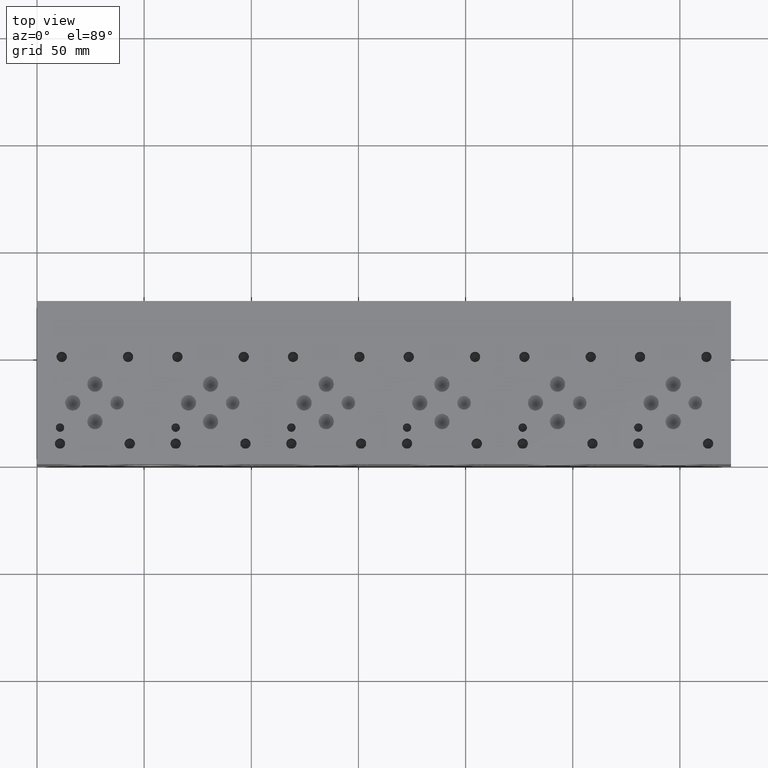
[diagram: clean part render]
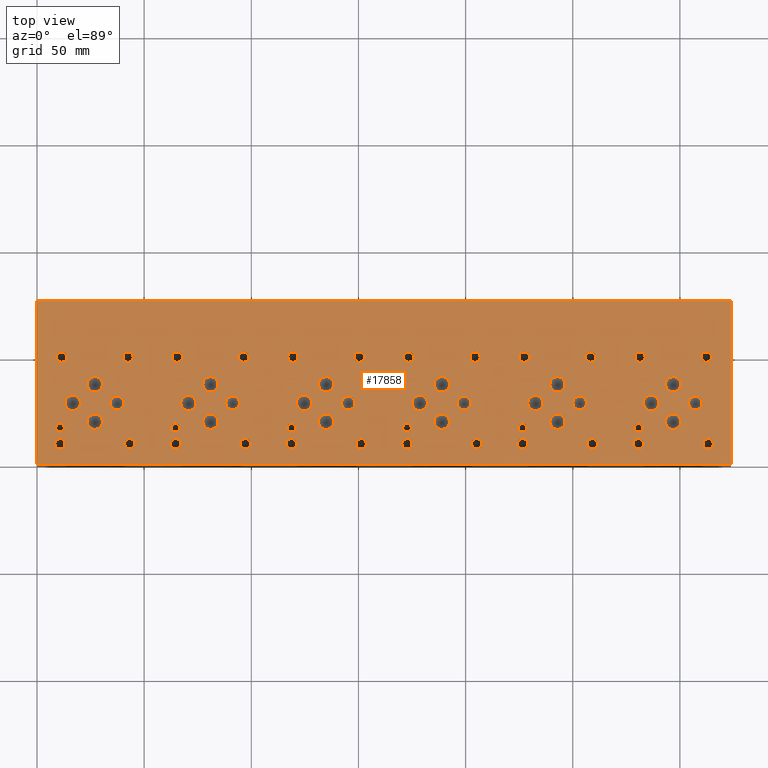
[diagram: same view with one face highlighted and labeled with its STEP entity id]
A machine part, top view. The second image highlights one B-rep face of the part: STEP entity #17858.
In plain terms, the highlighted planar face has unit normal (0, 0, 1).
Its self-contained STEP definition (entity closure, byte-faithful):
#515=CIRCLE('',#18702,1.9812);
#517=CIRCLE('',#18706,1.9812);
#519=CIRCLE('',#18710,1.9812);
#521=CIRCLE('',#18714,1.9812);
#523=CIRCLE('',#18718,1.9812);
#525=CIRCLE('',#18722,3.175);
#527=CIRCLE('',#18726,3.175);
#529=CIRCLE('',#18730,3.175);
#531=CIRCLE('',#18734,3.175);
#533=CIRCLE('',#18738,3.175);
#535=CIRCLE('',#18742,3.175);
#537=CIRCLE('',#18746,3.5687);
#539=CIRCLE('',#18750,3.5687);
#541=CIRCLE('',#18754,3.5687);
#543=CIRCLE('',#18758,3.5687);
#545=CIRCLE('',#18762,3.5687);
#547=CIRCLE('',#18766,3.5687);
#549=CIRCLE('',#18770,3.5687);
#551=CIRCLE('',#18774,3.5687);
#553=CIRCLE('',#18778,3.5687);
#555=CIRCLE('',#18782,3.5687);
#557=CIRCLE('',#18786,3.5687);
#559=CIRCLE('',#18790,3.5687);
#561=CIRCLE('',#18794,3.5687);
#563=CIRCLE('',#18798,3.5687);
#565=CIRCLE('',#18802,3.5687);
#567=CIRCLE('',#18806,3.5687);
#569=CIRCLE('',#18810,3.5687);
#571=CIRCLE('',#18814,3.5687);
#573=CIRCLE('',#18818,1.9812);
#577=CIRCLE('',#18825,2.413);
#581=CIRCLE('',#18833,2.413);
#585=CIRCLE('',#18841,2.413);
#589=CIRCLE('',#18849,2.413);
#593=CIRCLE('',#18857,2.413);
#597=CIRCLE('',#18865,2.413);
#601=CIRCLE('',#18873,2.413);
#605=CIRCLE('',#18881,2.413);
#609=CIRCLE('',#18889,2.413);
#613=CIRCLE('',#18897,2.413);
#617=CIRCLE('',#18905,2.413);
#621=CIRCLE('',#18913,2.413);
#625=CIRCLE('',#18921,2.413);
#629=CIRCLE('',#18929,2.413);
#633=CIRCLE('',#18937,2.413);
#637=CIRCLE('',#18945,2.413);
#641=CIRCLE('',#18953,2.413);
#645=CIRCLE('',#18961,2.413);
#649=CIRCLE('',#18969,2.413);
#653=CIRCLE('',#18977,2.413);
#657=CIRCLE('',#18985,2.413);
#661=CIRCLE('',#18993,2.413);
#665=CIRCLE('',#19001,2.413);
#669=CIRCLE('',#19009,2.413);
#818=FACE_BOUND('',#3519,.T.);
#819=FACE_BOUND('',#3520,.T.);
#820=FACE_BOUND('',#3521,.T.);
#821=FACE_BOUND('',#3522,.T.);
#822=FACE_BOUND('',#3523,.T.);
#823=FACE_BOUND('',#3524,.T.);
#824=FACE_BOUND('',#3525,.T.);
#825=FACE_BOUND('',#3526,.T.);
#826=FACE_BOUND('',#3527,.T.);
#827=FACE_BOUND('',#3528,.T.);
#828=FACE_BOUND('',#3529,.T.);
#829=FACE_BOUND('',#3530,.T.);
#830=FACE_BOUND('',#3531,.T.);
#831=FACE_BOUND('',#3532,.T.);
#832=FACE_BOUND('',#3533,.T.);
#833=FACE_BOUND('',#3534,.T.);
#834=FACE_BOUND('',#3535,.T.);
#835=FACE_BOUND('',#3536,.T.);
#836=FACE_BOUND('',#3537,.T.);
#837=FACE_BOUND('',#3538,.T.);
#838=FACE_BOUND('',#3539,.T.);
#839=FACE_BOUND('',#3540,.T.);
#840=FACE_BOUND('',#3541,.T.);
#841=FACE_BOUND('',#3542,.T.);
#842=FACE_BOUND('',#3543,.T.);
#843=FACE_BOUND('',#3544,.T.);
#844=FACE_BOUND('',#3545,.T.);
#845=FACE_BOUND('',#3546,.T.);
#846=FACE_BOUND('',#3547,.T.);
#847=FACE_BOUND('',#3548,.T.);
#848=FACE_BOUND('',#3549,.T.);
#849=FACE_BOUND('',#3550,.T.);
#850=FACE_BOUND('',#3551,.T.);
#851=FACE_BOUND('',#3552,.T.);
#852=FACE_BOUND('',#3553,.T.);
#853=FACE_BOUND('',#3554,.T.);
#854=FACE_BOUND('',#3555,.T.);
#855=FACE_BOUND('',#3556,.T.);
#856=FACE_BOUND('',#3557,.T.);
#857=FACE_BOUND('',#3558,.T.);
#858=FACE_BOUND('',#3559,.T.);
#859=FACE_BOUND('',#3560,.T.);
#860=FACE_BOUND('',#3561,.T.);
#861=FACE_BOUND('',#3562,.T.);
#862=FACE_BOUND('',#3563,.T.);
#863=FACE_BOUND('',#3564,.T.);
#864=FACE_BOUND('',#3565,.T.);
#865=FACE_BOUND('',#3566,.T.);
#866=FACE_BOUND('',#3567,.T.);
#867=FACE_BOUND('',#3568,.T.);
#868=FACE_BOUND('',#3569,.T.);
#869=FACE_BOUND('',#3570,.T.);
#870=FACE_BOUND('',#3571,.T.);
#871=FACE_BOUND('',#3572,.T.);
#1354=PLANE('',#19015);
#2362=FACE_OUTER_BOUND('',#3518,.T.);
#3518=EDGE_LOOP('',(#15948,#15949,#15950,#15951));
#3519=EDGE_LOOP('',(#15952));
#3520=EDGE_LOOP('',(#15953));
#3521=EDGE_LOOP('',(#15954));
#3522=EDGE_LOOP('',(#15955));
#3523=EDGE_LOOP('',(#15956));
#3524=EDGE_LOOP('',(#15957));
#3525=EDGE_LOOP('',(#15958));
#3526=EDGE_LOOP('',(#15959));
#3527=EDGE_LOOP('',(#15960));
#3528=EDGE_LOOP('',(#15961));
#3529=EDGE_LOOP('',(#15962));
#3530=EDGE_LOOP('',(#15963));
#3531=EDGE_LOOP('',(#15964));
#3532=EDGE_LOOP('',(#15965));
#3533=EDGE_LOOP('',(#15966));
#3534=EDGE_LOOP('',(#15967));
#3535=EDGE_LOOP('',(#15968));
#3536=EDGE_LOOP('',(#15969));
#3537=EDGE_LOOP('',(#15970));
#3538=EDGE_LOOP('',(#15971));
#3539=EDGE_LOOP('',(#15972));
#3540=EDGE_LOOP('',(#15973));
#3541=EDGE_LOOP('',(#15974));
#3542=EDGE_LOOP('',(#15975));
#3543=EDGE_LOOP('',(#15976));
#3544=EDGE_LOOP('',(#15977));
#3545=EDGE_LOOP('',(#15978));
#3546=EDGE_LOOP('',(#15979));
#3547=EDGE_LOOP('',(#15980));
#3548=EDGE_LOOP('',(#15981));
#3549=EDGE_LOOP('',(#15982));
#3550=EDGE_LOOP('',(#15983));
#3551=EDGE_LOOP('',(#15984));
#3552=EDGE_LOOP('',(#15985));
#3553=EDGE_LOOP('',(#15986));
#3554=EDGE_LOOP('',(#15987));
#3555=EDGE_LOOP('',(#15988));
#3556=EDGE_LOOP('',(#15989));
#3557=EDGE_LOOP('',(#15990));
#3558=EDGE_LOOP('',(#15991));
#3559=EDGE_LOOP('',(#15992));
#3560=EDGE_LOOP('',(#15993));
#3561=EDGE_LOOP('',(#15994));
#3562=EDGE_LOOP('',(#15995));
#3563=EDGE_LOOP('',(#15996));
#3564=EDGE_LOOP('',(#15997));
#3565=EDGE_LOOP('',(#15998));
#3566=EDGE_LOOP('',(#15999));
#3567=EDGE_LOOP('',(#16000));
#3568=EDGE_LOOP('',(#16001));
#3569=EDGE_LOOP('',(#16002));
#3570=EDGE_LOOP('',(#16003));
#3571=EDGE_LOOP('',(#16004));
#3572=EDGE_LOOP('',(#16005));
#3620=LINE('',#23223,#5209);
#4780=LINE('',#29111,#6369);
#4838=LINE('',#29374,#6427);
#5162=LINE('',#30843,#6751);
#5209=VECTOR('',#19089,10.);
#6369=VECTOR('',#21027,10.);
#6427=VECTOR('',#21131,10.);
#6751=VECTOR('',#22879,10.);
#7256=VERTEX_POINT('',#23220);
#7257=VERTEX_POINT('',#23222);
#8316=VERTEX_POINT('',#29109);
#8370=VERTEX_POINT('',#29373);
#8596=VERTEX_POINT('',#30192);
#8599=VERTEX_POINT('',#30201);
#8602=VERTEX_POINT('',#30210);
#8605=VERTEX_POINT('',#30219);
#8608=VERTEX_POINT('',#30228);
#8611=VERTEX_POINT('',#30237);
#8614=VERTEX_POINT('',#30246);
#8617=VERTEX_POINT('',#30255);
#8620=VERTEX_POINT('',#30264);
#8623=VERTEX_POINT('',#30273);
#8626=VERTEX_POINT('',#30282);
#8629=VERTEX_POINT('',#30291);
#8632=VERTEX_POINT('',#30300);
#8635=VERTEX_POINT('',#30309);
#8638=VERTEX_POINT('',#30318);
#8641=VERTEX_POINT('',#30327);
#8644=VERTEX_POINT('',#30336);
#8647=VERTEX_POINT('',#30345);
#8650=VERTEX_POINT('',#30354);
#8653=VERTEX_POINT('',#30363);
#8656=VERTEX_POINT('',#30372);
#8659=VERTEX_POINT('',#30381);
#8662=VERTEX_POINT('',#30390);
#8665=VERTEX_POINT('',#30399);
#8668=VERTEX_POINT('',#30408);
#8671=VERTEX_POINT('',#30417);
#8674=VERTEX_POINT('',#30426);
#8677=VERTEX_POINT('',#30435);
#8680=VERTEX_POINT('',#30444);
#8683=VERTEX_POINT('',#30453);
#8688=VERTEX_POINT('',#30467);
#8693=VERTEX_POINT('',#30483);
#8698=VERTEX_POINT('',#30499);
#8703=VERTEX_POINT('',#30515);
#8708=VERTEX_POINT('',#30531);
#8713=VERTEX_POINT('',#30547);
#8718=VERTEX_POINT('',#30563);
#8723=VERTEX_POINT('',#30579);
#8728=VERTEX_POINT('',#30595);
#8733=VERTEX_POINT('',#30611);
#8738=VERTEX_POINT('',#30627);
#8743=VERTEX_POINT('',#30643);
#8748=VERTEX_POINT('',#30659);
#8753=VERTEX_POINT('',#30675);
#8758=VERTEX_POINT('',#30691);
#8763=VERTEX_POINT('',#30707);
#8768=VERTEX_POINT('',#30723);
#8773=VERTEX_POINT('',#30739);
#8778=VERTEX_POINT('',#30755);
#8783=VERTEX_POINT('',#30771);
#8788=VERTEX_POINT('',#30787);
#8793=VERTEX_POINT('',#30803);
#8798=VERTEX_POINT('',#30819);
#8803=VERTEX_POINT('',#30835);
#8878=EDGE_CURVE('',#7257,#7256,#3620,.T.);
#10461=EDGE_CURVE('',#7256,#8316,#4780,.T.);
#10539=EDGE_CURVE('',#8370,#7257,#4838,.T.);
#10918=EDGE_CURVE('',#8596,#8596,#515,.T.);
#10922=EDGE_CURVE('',#8599,#8599,#517,.T.);
#10926=EDGE_CURVE('',#8602,#8602,#519,.T.);
#10930=EDGE_CURVE('',#8605,#8605,#521,.T.);
#10934=EDGE_CURVE('',#8608,#8608,#523,.T.);
#10938=EDGE_CURVE('',#8611,#8611,#525,.T.);
#10942=EDGE_CURVE('',#8614,#8614,#527,.T.);
#10946=EDGE_CURVE('',#8617,#8617,#529,.T.);
#10950=EDGE_CURVE('',#8620,#8620,#531,.T.);
#10954=EDGE_CURVE('',#8623,#8623,#533,.T.);
#10958=EDGE_CURVE('',#8626,#8626,#535,.T.);
#10962=EDGE_CURVE('',#8629,#8629,#537,.T.);
#10966=EDGE_CURVE('',#8632,#8632,#539,.T.);
#10970=EDGE_CURVE('',#8635,#8635,#541,.T.);
#10974=EDGE_CURVE('',#8638,#8638,#543,.T.);
#10978=EDGE_CURVE('',#8641,#8641,#545,.T.);
#10982=EDGE_CURVE('',#8644,#8644,#547,.T.);
#10986=EDGE_CURVE('',#8647,#8647,#549,.T.);
#10990=EDGE_CURVE('',#8650,#8650,#551,.T.);
#10994=EDGE_CURVE('',#8653,#8653,#553,.T.);
#10998=EDGE_CURVE('',#8656,#8656,#555,.T.);
#11002=EDGE_CURVE('',#8659,#8659,#557,.T.);
#11006=EDGE_CURVE('',#8662,#8662,#559,.T.);
#11010=EDGE_CURVE('',#8665,#8665,#561,.T.);
#11014=EDGE_CURVE('',#8668,#8668,#563,.T.);
#11018=EDGE_CURVE('',#8671,#8671,#565,.T.);
#11022=EDGE_CURVE('',#8674,#8674,#567,.T.);
#11026=EDGE_CURVE('',#8677,#8677,#569,.T.);
#11030=EDGE_CURVE('',#8680,#8680,#571,.T.);
#11034=EDGE_CURVE('',#8683,#8683,#573,.T.);
#11040=EDGE_CURVE('',#8688,#8688,#577,.T.);
#11047=EDGE_CURVE('',#8693,#8693,#581,.T.);
#11054=EDGE_CURVE('',#8698,#8698,#585,.T.);
#11061=EDGE_CURVE('',#8703,#8703,#589,.T.);
#11068=EDGE_CURVE('',#8708,#8708,#593,.T.);
#11075=EDGE_CURVE('',#8713,#8713,#597,.T.);
#11082=EDGE_CURVE('',#8718,#8718,#601,.T.);
#11089=EDGE_CURVE('',#8723,#8723,#605,.T.);
#11096=EDGE_CURVE('',#8728,#8728,#609,.T.);
#11103=EDGE_CURVE('',#8733,#8733,#613,.T.);
#11110=EDGE_CURVE('',#8738,#8738,#617,.T.);
#11117=EDGE_CURVE('',#8743,#8743,#621,.T.);
#11124=EDGE_CURVE('',#8748,#8748,#625,.T.);
#11131=EDGE_CURVE('',#8753,#8753,#629,.T.);
#11138=EDGE_CURVE('',#8758,#8758,#633,.T.);
#11145=EDGE_CURVE('',#8763,#8763,#637,.T.);
#11152=EDGE_CURVE('',#8768,#8768,#641,.T.);
#11159=EDGE_CURVE('',#8773,#8773,#645,.T.);
#11166=EDGE_CURVE('',#8778,#8778,#649,.T.);
#11173=EDGE_CURVE('',#8783,#8783,#653,.T.);
#11180=EDGE_CURVE('',#8788,#8788,#657,.T.);
#11187=EDGE_CURVE('',#8793,#8793,#661,.T.);
#11194=EDGE_CURVE('',#8798,#8798,#665,.T.);
#11201=EDGE_CURVE('',#8803,#8803,#669,.T.);
#11205=EDGE_CURVE('',#8316,#8370,#5162,.T.);
#15948=ORIENTED_EDGE('',*,*,#8878,.T.);
#15949=ORIENTED_EDGE('',*,*,#10461,.T.);
#15950=ORIENTED_EDGE('',*,*,#11205,.T.);
#15951=ORIENTED_EDGE('',*,*,#10539,.T.);
#15952=ORIENTED_EDGE('',*,*,#10918,.T.);
#15953=ORIENTED_EDGE('',*,*,#10922,.T.);
#15954=ORIENTED_EDGE('',*,*,#10926,.T.);
#15955=ORIENTED_EDGE('',*,*,#10930,.T.);
#15956=ORIENTED_EDGE('',*,*,#10934,.T.);
#15957=ORIENTED_EDGE('',*,*,#10938,.T.);
#15958=ORIENTED_EDGE('',*,*,#10942,.T.);
#15959=ORIENTED_EDGE('',*,*,#10946,.T.);
#15960=ORIENTED_EDGE('',*,*,#10950,.T.);
#15961=ORIENTED_EDGE('',*,*,#10954,.T.);
#15962=ORIENTED_EDGE('',*,*,#10958,.T.);
#15963=ORIENTED_EDGE('',*,*,#10962,.T.);
#15964=ORIENTED_EDGE('',*,*,#10966,.T.);
#15965=ORIENTED_EDGE('',*,*,#10970,.T.);
#15966=ORIENTED_EDGE('',*,*,#10974,.T.);
#15967=ORIENTED_EDGE('',*,*,#10978,.T.);
#15968=ORIENTED_EDGE('',*,*,#10982,.T.);
#15969=ORIENTED_EDGE('',*,*,#10986,.T.);
#15970=ORIENTED_EDGE('',*,*,#10990,.T.);
#15971=ORIENTED_EDGE('',*,*,#10994,.T.);
#15972=ORIENTED_EDGE('',*,*,#10998,.T.);
#15973=ORIENTED_EDGE('',*,*,#11002,.T.);
#15974=ORIENTED_EDGE('',*,*,#11006,.T.);
#15975=ORIENTED_EDGE('',*,*,#11010,.T.);
#15976=ORIENTED_EDGE('',*,*,#11014,.T.);
#15977=ORIENTED_EDGE('',*,*,#11018,.T.);
#15978=ORIENTED_EDGE('',*,*,#11022,.T.);
#15979=ORIENTED_EDGE('',*,*,#11026,.T.);
#15980=ORIENTED_EDGE('',*,*,#11030,.T.);
#15981=ORIENTED_EDGE('',*,*,#11034,.T.);
#15982=ORIENTED_EDGE('',*,*,#11040,.T.);
#15983=ORIENTED_EDGE('',*,*,#11047,.T.);
#15984=ORIENTED_EDGE('',*,*,#11054,.T.);
#15985=ORIENTED_EDGE('',*,*,#11061,.T.);
#15986=ORIENTED_EDGE('',*,*,#11068,.T.);
#15987=ORIENTED_EDGE('',*,*,#11075,.T.);
#15988=ORIENTED_EDGE('',*,*,#11082,.T.);
#15989=ORIENTED_EDGE('',*,*,#11089,.T.);
#15990=ORIENTED_EDGE('',*,*,#11096,.T.);
#15991=ORIENTED_EDGE('',*,*,#11103,.T.);
#15992=ORIENTED_EDGE('',*,*,#11110,.T.);
#15993=ORIENTED_EDGE('',*,*,#11117,.T.);
#15994=ORIENTED_EDGE('',*,*,#11124,.T.);
#15995=ORIENTED_EDGE('',*,*,#11131,.T.);
#15996=ORIENTED_EDGE('',*,*,#11138,.T.);
#15997=ORIENTED_EDGE('',*,*,#11145,.T.);
#15998=ORIENTED_EDGE('',*,*,#11152,.T.);
#15999=ORIENTED_EDGE('',*,*,#11159,.T.);
#16000=ORIENTED_EDGE('',*,*,#11166,.T.);
#16001=ORIENTED_EDGE('',*,*,#11173,.T.);
#16002=ORIENTED_EDGE('',*,*,#11180,.T.);
#16003=ORIENTED_EDGE('',*,*,#11187,.T.);
#16004=ORIENTED_EDGE('',*,*,#11194,.T.);
#16005=ORIENTED_EDGE('',*,*,#11201,.T.);
#17858=ADVANCED_FACE('',(#2362,#818,#819,#820,#821,#822,#823,#824,#825,
#826,#827,#828,#829,#830,#831,#832,#833,#834,#835,#836,#837,#838,#839,#840,
#841,#842,#843,#844,#845,#846,#847,#848,#849,#850,#851,#852,#853,#854,#855,
#856,#857,#858,#859,#860,#861,#862,#863,#864,#865,#866,#867,#868,#869,#870,
#871),#1354,.T.);
#18702=AXIS2_PLACEMENT_3D('',#30193,#22125,#22126);
#18706=AXIS2_PLACEMENT_3D('',#30202,#22135,#22136);
#18710=AXIS2_PLACEMENT_3D('',#30211,#22145,#22146);
#18714=AXIS2_PLACEMENT_3D('',#30220,#22155,#22156);
#18718=AXIS2_PLACEMENT_3D('',#30229,#22165,#22166);
#18722=AXIS2_PLACEMENT_3D('',#30238,#22175,#22176);
#18726=AXIS2_PLACEMENT_3D('',#30247,#22185,#22186);
#18730=AXIS2_PLACEMENT_3D('',#30256,#22195,#22196);
#18734=AXIS2_PLACEMENT_3D('',#30265,#22205,#22206);
#18738=AXIS2_PLACEMENT_3D('',#30274,#22215,#22216);
#18742=AXIS2_PLACEMENT_3D('',#30283,#22225,#22226);
#18746=AXIS2_PLACEMENT_3D('',#30292,#22235,#22236);
#18750=AXIS2_PLACEMENT_3D('',#30301,#22245,#22246);
#18754=AXIS2_PLACEMENT_3D('',#30310,#22255,#22256);
#18758=AXIS2_PLACEMENT_3D('',#30319,#22265,#22266);
#18762=AXIS2_PLACEMENT_3D('',#30328,#22275,#22276);
#18766=AXIS2_PLACEMENT_3D('',#30337,#22285,#22286);
#18770=AXIS2_PLACEMENT_3D('',#30346,#22295,#22296);
#18774=AXIS2_PLACEMENT_3D('',#30355,#22305,#22306);
#18778=AXIS2_PLACEMENT_3D('',#30364,#22315,#22316);
#18782=AXIS2_PLACEMENT_3D('',#30373,#22325,#22326);
#18786=AXIS2_PLACEMENT_3D('',#30382,#22335,#22336);
#18790=AXIS2_PLACEMENT_3D('',#30391,#22345,#22346);
#18794=AXIS2_PLACEMENT_3D('',#30400,#22355,#22356);
#18798=AXIS2_PLACEMENT_3D('',#30409,#22365,#22366);
#18802=AXIS2_PLACEMENT_3D('',#30418,#22375,#22376);
#18806=AXIS2_PLACEMENT_3D('',#30427,#22385,#22386);
#18810=AXIS2_PLACEMENT_3D('',#30436,#22395,#22396);
#18814=AXIS2_PLACEMENT_3D('',#30445,#22405,#22406);
#18818=AXIS2_PLACEMENT_3D('',#30454,#22415,#22416);
#18825=AXIS2_PLACEMENT_3D('',#30468,#22431,#22432);
#18833=AXIS2_PLACEMENT_3D('',#30484,#22450,#22451);
#18841=AXIS2_PLACEMENT_3D('',#30500,#22469,#22470);
#18849=AXIS2_PLACEMENT_3D('',#30516,#22488,#22489);
#18857=AXIS2_PLACEMENT_3D('',#30532,#22507,#22508);
#18865=AXIS2_PLACEMENT_3D('',#30548,#22526,#22527);
#18873=AXIS2_PLACEMENT_3D('',#30564,#22545,#22546);
#18881=AXIS2_PLACEMENT_3D('',#30580,#22564,#22565);
#18889=AXIS2_PLACEMENT_3D('',#30596,#22583,#22584);
#18897=AXIS2_PLACEMENT_3D('',#30612,#22602,#22603);
#18905=AXIS2_PLACEMENT_3D('',#30628,#22621,#22622);
#18913=AXIS2_PLACEMENT_3D('',#30644,#22640,#22641);
#18921=AXIS2_PLACEMENT_3D('',#30660,#22659,#22660);
#18929=AXIS2_PLACEMENT_3D('',#30676,#22678,#22679);
#18937=AXIS2_PLACEMENT_3D('',#30692,#22697,#22698);
#18945=AXIS2_PLACEMENT_3D('',#30708,#22716,#22717);
#18953=AXIS2_PLACEMENT_3D('',#30724,#22735,#22736);
#18961=AXIS2_PLACEMENT_3D('',#30740,#22754,#22755);
#18969=AXIS2_PLACEMENT_3D('',#30756,#22773,#22774);
#18977=AXIS2_PLACEMENT_3D('',#30772,#22792,#22793);
#18985=AXIS2_PLACEMENT_3D('',#30788,#22811,#22812);
#18993=AXIS2_PLACEMENT_3D('',#30804,#22830,#22831);
#19001=AXIS2_PLACEMENT_3D('',#30820,#22849,#22850);
#19009=AXIS2_PLACEMENT_3D('',#30836,#22868,#22869);
#19015=AXIS2_PLACEMENT_3D('',#30846,#22884,#22885);
#19089=DIRECTION('',(1.,0.,0.));
#21027=DIRECTION('',(0.,1.,0.));
#21131=DIRECTION('',(0.,-1.,0.));
#22125=DIRECTION('center_axis',(0.,0.,-1.));
#22126=DIRECTION('ref_axis',(1.,0.,0.));
#22135=DIRECTION('center_axis',(0.,0.,-1.));
#22136=DIRECTION('ref_axis',(1.,0.,0.));
#22145=DIRECTION('center_axis',(0.,0.,-1.));
#22146=DIRECTION('ref_axis',(1.,0.,0.));
#22155=DIRECTION('center_axis',(0.,0.,-1.));
#22156=DIRECTION('ref_axis',(1.,0.,0.));
#22165=DIRECTION('center_axis',(0.,0.,-1.));
#22166=DIRECTION('ref_axis',(1.,0.,0.));
#22175=DIRECTION('center_axis',(0.,0.,-1.));
#22176=DIRECTION('ref_axis',(1.,0.,0.));
#22185=DIRECTION('center_axis',(0.,0.,-1.));
#22186=DIRECTION('ref_axis',(1.,0.,0.));
#22195=DIRECTION('center_axis',(0.,0.,-1.));
#22196=DIRECTION('ref_axis',(1.,0.,0.));
#22205=DIRECTION('center_axis',(0.,0.,-1.));
#22206=DIRECTION('ref_axis',(1.,0.,0.));
#22215=DIRECTION('center_axis',(0.,0.,-1.));
#22216=DIRECTION('ref_axis',(1.,0.,0.));
#22225=DIRECTION('center_axis',(0.,0.,-1.));
#22226=DIRECTION('ref_axis',(1.,0.,0.));
#22235=DIRECTION('center_axis',(0.,0.,-1.));
#22236=DIRECTION('ref_axis',(1.,0.,0.));
#22245=DIRECTION('center_axis',(0.,0.,-1.));
#22246=DIRECTION('ref_axis',(1.,0.,0.));
#22255=DIRECTION('center_axis',(0.,0.,-1.));
#22256=DIRECTION('ref_axis',(1.,0.,0.));
#22265=DIRECTION('center_axis',(0.,0.,-1.));
#22266=DIRECTION('ref_axis',(1.,0.,0.));
#22275=DIRECTION('center_axis',(0.,0.,-1.));
#22276=DIRECTION('ref_axis',(1.,0.,0.));
#22285=DIRECTION('center_axis',(0.,0.,-1.));
#22286=DIRECTION('ref_axis',(1.,0.,0.));
#22295=DIRECTION('center_axis',(0.,0.,-1.));
#22296=DIRECTION('ref_axis',(1.,0.,0.));
#22305=DIRECTION('center_axis',(0.,0.,-1.));
#22306=DIRECTION('ref_axis',(1.,0.,0.));
#22315=DIRECTION('center_axis',(0.,0.,-1.));
#22316=DIRECTION('ref_axis',(1.,0.,0.));
#22325=DIRECTION('center_axis',(0.,0.,-1.));
#22326=DIRECTION('ref_axis',(1.,0.,0.));
#22335=DIRECTION('center_axis',(0.,0.,-1.));
#22336=DIRECTION('ref_axis',(1.,0.,0.));
#22345=DIRECTION('center_axis',(0.,0.,-1.));
#22346=DIRECTION('ref_axis',(1.,0.,0.));
#22355=DIRECTION('center_axis',(0.,0.,-1.));
#22356=DIRECTION('ref_axis',(1.,0.,0.));
#22365=DIRECTION('center_axis',(0.,0.,-1.));
#22366=DIRECTION('ref_axis',(1.,0.,0.));
#22375=DIRECTION('center_axis',(0.,0.,-1.));
#22376=DIRECTION('ref_axis',(1.,0.,0.));
#22385=DIRECTION('center_axis',(0.,0.,-1.));
#22386=DIRECTION('ref_axis',(1.,0.,0.));
#22395=DIRECTION('center_axis',(0.,0.,-1.));
#22396=DIRECTION('ref_axis',(1.,0.,0.));
#22405=DIRECTION('center_axis',(0.,0.,-1.));
#22406=DIRECTION('ref_axis',(1.,0.,0.));
#22415=DIRECTION('center_axis',(0.,0.,-1.));
#22416=DIRECTION('ref_axis',(1.,0.,0.));
#22431=DIRECTION('center_axis',(0.,0.,-1.));
#22432=DIRECTION('ref_axis',(1.,0.,0.));
#22450=DIRECTION('center_axis',(0.,0.,-1.));
#22451=DIRECTION('ref_axis',(1.,0.,0.));
#22469=DIRECTION('center_axis',(0.,0.,-1.));
#22470=DIRECTION('ref_axis',(1.,0.,0.));
#22488=DIRECTION('center_axis',(0.,0.,-1.));
#22489=DIRECTION('ref_axis',(1.,0.,0.));
#22507=DIRECTION('center_axis',(0.,0.,-1.));
#22508=DIRECTION('ref_axis',(1.,0.,0.));
#22526=DIRECTION('center_axis',(0.,0.,-1.));
#22527=DIRECTION('ref_axis',(1.,0.,0.));
#22545=DIRECTION('center_axis',(0.,0.,-1.));
#22546=DIRECTION('ref_axis',(1.,0.,0.));
#22564=DIRECTION('center_axis',(0.,0.,-1.));
#22565=DIRECTION('ref_axis',(1.,0.,0.));
#22583=DIRECTION('center_axis',(0.,0.,-1.));
#22584=DIRECTION('ref_axis',(1.,0.,0.));
#22602=DIRECTION('center_axis',(0.,0.,-1.));
#22603=DIRECTION('ref_axis',(1.,0.,0.));
#22621=DIRECTION('center_axis',(0.,0.,-1.));
#22622=DIRECTION('ref_axis',(1.,0.,0.));
#22640=DIRECTION('center_axis',(0.,0.,-1.));
#22641=DIRECTION('ref_axis',(1.,0.,0.));
#22659=DIRECTION('center_axis',(0.,0.,-1.));
#22660=DIRECTION('ref_axis',(1.,0.,0.));
#22678=DIRECTION('center_axis',(0.,0.,-1.));
#22679=DIRECTION('ref_axis',(1.,0.,0.));
#22697=DIRECTION('center_axis',(0.,0.,-1.));
#22698=DIRECTION('ref_axis',(1.,0.,0.));
#22716=DIRECTION('center_axis',(0.,0.,-1.));
#22717=DIRECTION('ref_axis',(1.,0.,0.));
#22735=DIRECTION('center_axis',(0.,0.,-1.));
#22736=DIRECTION('ref_axis',(1.,0.,0.));
#22754=DIRECTION('center_axis',(0.,0.,-1.));
#22755=DIRECTION('ref_axis',(1.,0.,0.));
#22773=DIRECTION('center_axis',(0.,0.,-1.));
#22774=DIRECTION('ref_axis',(1.,0.,0.));
#22792=DIRECTION('center_axis',(0.,0.,-1.));
#22793=DIRECTION('ref_axis',(1.,0.,0.));
#22811=DIRECTION('center_axis',(0.,0.,-1.));
#22812=DIRECTION('ref_axis',(1.,0.,0.));
#22830=DIRECTION('center_axis',(0.,0.,-1.));
#22831=DIRECTION('ref_axis',(1.,0.,0.));
#22849=DIRECTION('center_axis',(0.,0.,-1.));
#22850=DIRECTION('ref_axis',(1.,0.,0.));
#22868=DIRECTION('center_axis',(0.,0.,-1.));
#22869=DIRECTION('ref_axis',(1.,0.,0.));
#22879=DIRECTION('',(-1.,0.,0.));
#22884=DIRECTION('center_axis',(0.,0.,1.));
#22885=DIRECTION('ref_axis',(1.,0.,0.));
#23220=CARTESIAN_POINT('',(323.85,0.,76.2));
#23222=CARTESIAN_POINT('',(0.,0.,76.2));
#23223=CARTESIAN_POINT('',(0.,0.,76.2));
#29109=CARTESIAN_POINT('',(323.85,76.2,76.2));
#29111=CARTESIAN_POINT('',(323.85,0.,76.2));
#29373=CARTESIAN_POINT('',(0.,76.2,76.2));
#29374=CARTESIAN_POINT('',(0.,76.2,76.2));
#30192=CARTESIAN_POINT('',(224.6376,17.018,76.2));
#30193=CARTESIAN_POINT('Origin',(226.6188,17.018,76.2));
#30201=CARTESIAN_POINT('',(116.6876,17.018,76.2));
#30202=CARTESIAN_POINT('Origin',(118.6688,17.018,76.2));
#30210=CARTESIAN_POINT('',(62.7126,17.018,76.2));
#30211=CARTESIAN_POINT('Origin',(64.6938,17.018,76.2));
#30219=CARTESIAN_POINT('',(170.6626,17.018,76.2));
#30220=CARTESIAN_POINT('Origin',(172.6438,17.018,76.2));
#30228=CARTESIAN_POINT('',(278.6126,17.018,76.2));
#30229=CARTESIAN_POINT('Origin',(280.5938,17.018,76.2));
#30237=CARTESIAN_POINT('',(250.0376,28.575,76.2));
#30238=CARTESIAN_POINT('Origin',(253.2126,28.575,76.2));
#30246=CARTESIAN_POINT('',(142.0876,28.575,76.2));
#30247=CARTESIAN_POINT('Origin',(145.2626,28.575,76.2));
#30255=CARTESIAN_POINT('',(34.1376,28.575,76.2));
#30256=CARTESIAN_POINT('Origin',(37.3126,28.575,76.2));
#30264=CARTESIAN_POINT('',(88.1126,28.575,76.2));
#30265=CARTESIAN_POINT('Origin',(91.2876,28.575,76.2));
#30273=CARTESIAN_POINT('',(196.0626,28.575,76.2));
#30274=CARTESIAN_POINT('Origin',(199.2376,28.575,76.2));
#30282=CARTESIAN_POINT('',(304.0126,28.575,76.2));
#30283=CARTESIAN_POINT('Origin',(307.1876,28.575,76.2));
#30291=CARTESIAN_POINT('',(293.2811,37.3126,76.2));
#30292=CARTESIAN_POINT('Origin',(296.8498,37.3126,76.2));
#30300=CARTESIAN_POINT('',(239.3061,19.8374,76.2));
#30301=CARTESIAN_POINT('Origin',(242.8748,19.8374,76.2));
#30309=CARTESIAN_POINT('',(228.9937,28.575,76.2));
#30310=CARTESIAN_POINT('Origin',(232.5624,28.575,76.2));
#30318=CARTESIAN_POINT('',(185.3311,37.3126,76.2));
#30319=CARTESIAN_POINT('Origin',(188.8998,37.3126,76.2));
#30327=CARTESIAN_POINT('',(131.3561,19.8374,76.2));
#30328=CARTESIAN_POINT('Origin',(134.9248,19.8374,76.2));
#30336=CARTESIAN_POINT('',(121.0437,28.575,76.2));
#30337=CARTESIAN_POINT('Origin',(124.6124,28.575,76.2));
#30345=CARTESIAN_POINT('',(77.3811,37.3126,76.2));
#30346=CARTESIAN_POINT('Origin',(80.9498,37.3126,76.2));
#30354=CARTESIAN_POINT('',(23.4061,19.8374,76.2));
#30355=CARTESIAN_POINT('Origin',(26.9748,19.8374,76.2));
#30363=CARTESIAN_POINT('',(13.0937,28.575,76.2));
#30364=CARTESIAN_POINT('Origin',(16.6624,28.575,76.2));
#30372=CARTESIAN_POINT('',(23.4061,37.3126,76.2));
#30373=CARTESIAN_POINT('Origin',(26.9748,37.3126,76.2));
#30381=CARTESIAN_POINT('',(67.0687,28.575,76.2));
#30382=CARTESIAN_POINT('Origin',(70.6374,28.575,76.2));
#30390=CARTESIAN_POINT('',(77.3811,19.8374,76.2));
#30391=CARTESIAN_POINT('Origin',(80.9498,19.8374,76.2));
#30399=CARTESIAN_POINT('',(131.3561,37.3126,76.2));
#30400=CARTESIAN_POINT('Origin',(134.9248,37.3126,76.2));
#30408=CARTESIAN_POINT('',(175.0187,28.575,76.2));
#30409=CARTESIAN_POINT('Origin',(178.5874,28.575,76.2));
#30417=CARTESIAN_POINT('',(185.3311,19.8374,76.2));
#30418=CARTESIAN_POINT('Origin',(188.8998,19.8374,76.2));
#30426=CARTESIAN_POINT('',(239.3061,37.3126,76.2));
#30427=CARTESIAN_POINT('Origin',(242.8748,37.3126,76.2));
#30435=CARTESIAN_POINT('',(282.9687,28.575,76.2));
#30436=CARTESIAN_POINT('Origin',(286.5374,28.575,76.2));
#30444=CARTESIAN_POINT('',(293.2811,19.8374,76.2));
#30445=CARTESIAN_POINT('Origin',(296.8498,19.8374,76.2));
#30453=CARTESIAN_POINT('',(8.7376,17.018,76.2));
#30454=CARTESIAN_POINT('Origin',(10.7188,17.018,76.2));
#30467=CARTESIAN_POINT('',(310.7182,9.525,76.2));
#30468=CARTESIAN_POINT('Origin',(313.1312,9.525,76.2));
#30483=CARTESIAN_POINT('',(278.9682,50.0126,76.2));
#30484=CARTESIAN_POINT('Origin',(281.3812,50.0126,76.2));
#30499=CARTESIAN_POINT('',(256.7432,9.525,76.2));
#30500=CARTESIAN_POINT('Origin',(259.1562,9.525,76.2));
#30515=CARTESIAN_POINT('',(224.9932,50.0126,76.2));
#30516=CARTESIAN_POINT('Origin',(227.4062,50.0126,76.2));
#30531=CARTESIAN_POINT('',(202.7682,9.525,76.2));
#30532=CARTESIAN_POINT('Origin',(205.1812,9.525,76.2));
#30547=CARTESIAN_POINT('',(171.0182,50.0126,76.2));
#30548=CARTESIAN_POINT('Origin',(173.4312,50.0126,76.2));
#30563=CARTESIAN_POINT('',(148.7932,9.525,76.2));
#30564=CARTESIAN_POINT('Origin',(151.2062,9.525,76.2));
#30579=CARTESIAN_POINT('',(117.0432,50.0126,76.2));
#30580=CARTESIAN_POINT('Origin',(119.4562,50.0126,76.2));
#30595=CARTESIAN_POINT('',(94.8182,9.525,76.2));
#30596=CARTESIAN_POINT('Origin',(97.2312,9.525,76.2));
#30611=CARTESIAN_POINT('',(63.0682,50.0126,76.2));
#30612=CARTESIAN_POINT('Origin',(65.4812,50.0126,76.2));
#30627=CARTESIAN_POINT('',(40.8432,9.525,76.2));
#30628=CARTESIAN_POINT('Origin',(43.2562,9.525,76.2));
#30643=CARTESIAN_POINT('',(9.0932,50.0126,76.2));
#30644=CARTESIAN_POINT('Origin',(11.5062,50.0126,76.2));
#30659=CARTESIAN_POINT('',(40.0558,50.0126,76.2));
#30660=CARTESIAN_POINT('Origin',(42.4688,50.0126,76.2));
#30675=CARTESIAN_POINT('',(8.3058,9.525,76.2));
#30676=CARTESIAN_POINT('Origin',(10.7188,9.525,76.2));
#30691=CARTESIAN_POINT('',(94.0308,50.0126,76.2));
#30692=CARTESIAN_POINT('Origin',(96.4438,50.0126,76.2));
#30707=CARTESIAN_POINT('',(62.2808,9.525,76.2));
#30708=CARTESIAN_POINT('Origin',(64.6938,9.525,76.2));
#30723=CARTESIAN_POINT('',(148.0058,50.0126,76.2));
#30724=CARTESIAN_POINT('Origin',(150.4188,50.0126,76.2));
#30739=CARTESIAN_POINT('',(116.2558,9.525,76.2));
#30740=CARTESIAN_POINT('Origin',(118.6688,9.525,76.2));
#30755=CARTESIAN_POINT('',(201.9808,50.0126,76.2));
#30756=CARTESIAN_POINT('Origin',(204.3938,50.0126,76.2));
#30771=CARTESIAN_POINT('',(170.2308,9.525,76.2));
#30772=CARTESIAN_POINT('Origin',(172.6438,9.525,76.2));
#30787=CARTESIAN_POINT('',(255.9558,50.0126,76.2));
#30788=CARTESIAN_POINT('Origin',(258.3688,50.0126,76.2));
#30803=CARTESIAN_POINT('',(224.2058,9.525,76.2));
#30804=CARTESIAN_POINT('Origin',(226.6188,9.525,76.2));
#30819=CARTESIAN_POINT('',(309.9308,50.0126,76.2));
#30820=CARTESIAN_POINT('Origin',(312.3438,50.0126,76.2));
#30835=CARTESIAN_POINT('',(278.1808,9.525,76.2));
#30836=CARTESIAN_POINT('Origin',(280.5938,9.525,76.2));
#30843=CARTESIAN_POINT('',(323.85,76.2,76.2));
#30846=CARTESIAN_POINT('Origin',(161.925,38.1,76.2));